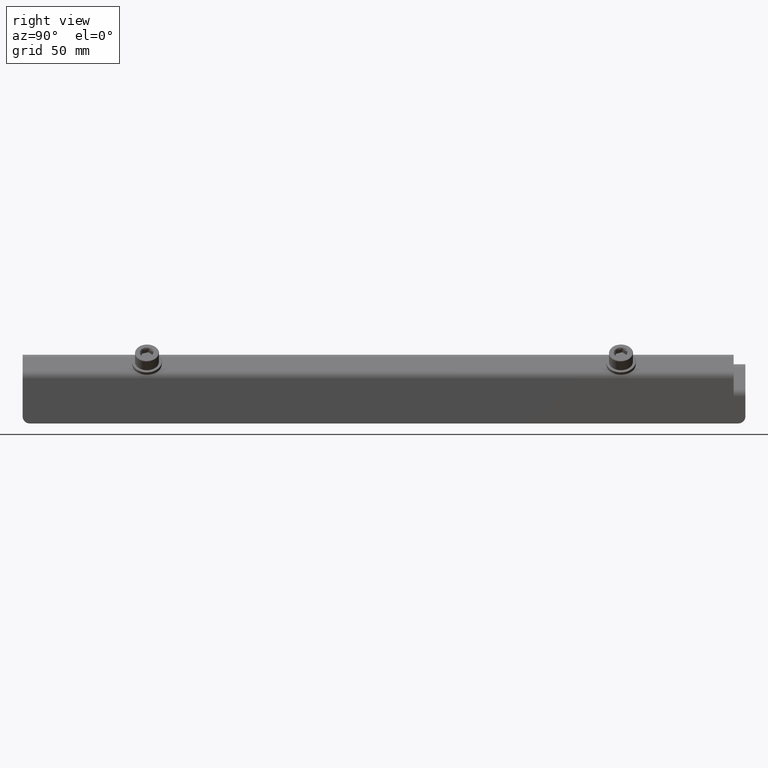
[diagram: clean part render]
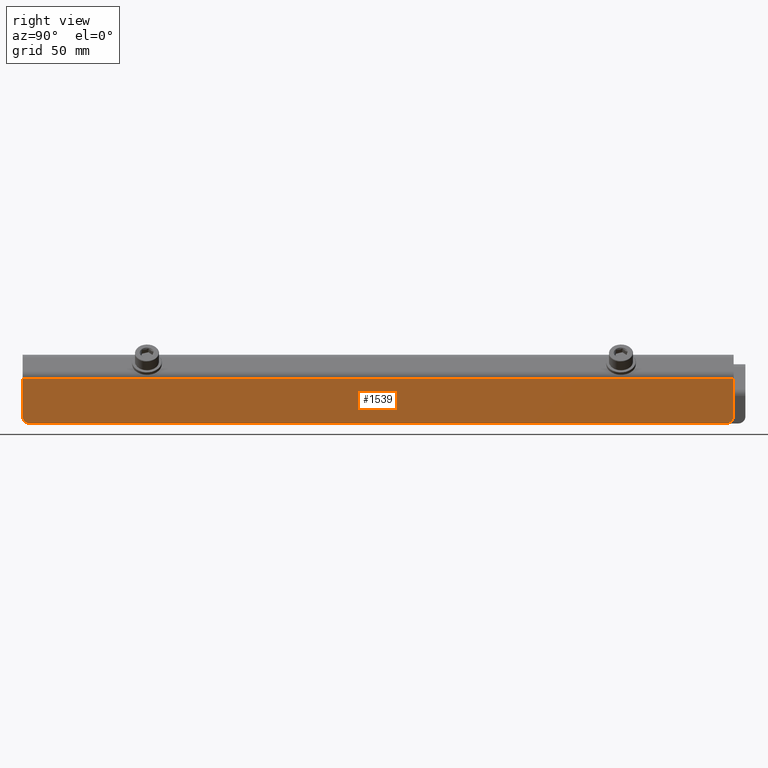
[diagram: same view with one face highlighted and labeled with its STEP entity id]
A machine part, right view. The second image highlights one B-rep face of the part: STEP entity #1539.
In plain terms, the highlighted planar face has unit normal (-1, 0, 0).
Its self-contained STEP definition (entity closure, byte-faithful):
#47 = DIRECTION ( 'NONE',  ( -1.000000000000000000, 1.962615573354721855E-16, 3.330669073875468832E-15 ) ) ;
#85 = LINE ( 'NONE', #2729, #2404 ) ;
#157 = VERTEX_POINT ( 'NONE', #903 ) ;
#299 = VERTEX_POINT ( 'NONE', #3073 ) ;
#369 = DIRECTION ( 'NONE',  ( -3.330669073875468832E-15, -1.962615573354715446E-16, -1.000000000000000000 ) ) ;
#499 = EDGE_CURVE ( 'NONE', #3006, #3013, #2072, .T. ) ;
#802 = CIRCLE ( 'NONE', #3239, 3.000000000000002665 ) ;
#842 = CARTESIAN_POINT ( 'NONE',  ( 3.547574842914249516, 223.3044532268044975, 164.4564181049460956 ) ) ;
#851 = DIRECTION ( 'NONE',  ( -1.000000000000000000, 1.962615573354721855E-16, 3.330669073875468832E-15 ) ) ;
#903 = CARTESIAN_POINT ( 'NONE',  ( 3.547574842914127835, -73.69554677319547409, 145.3559130415578124 ) ) ;
#985 = EDGE_CURVE ( 'NONE', #4008, #157, #2858, .T. ) ;
#1123 = EDGE_CURVE ( 'NONE', #3013, #4008, #2698, .T. ) ;
#1355 = FACE_OUTER_BOUND ( 'NONE', #3023, .T. ) ;
#1445 = EDGE_CURVE ( 'NONE', #299, #1578, #85, .T. ) ;
#1505 = LINE ( 'NONE', #2467, #1996 ) ;
#1516 = DIRECTION ( 'NONE',  ( -1.962615573354715199E-16, -1.000000000000000000, 1.962615573354722102E-16 ) ) ;
#1539 = ADVANCED_FACE ( 'NONE', ( #1355 ), #2680, .F. ) ;
#1578 = VERTEX_POINT ( 'NONE', #2769 ) ;
#1784 = ORIENTED_EDGE ( 'NONE', *, *, #1445, .T. ) ;
#1785 = DIRECTION ( 'NONE',  ( 1.962615573354715199E-16, 1.000000000000000000, -1.962615573354722102E-16 ) ) ;
#1833 = ORIENTED_EDGE ( 'NONE', *, *, #2492, .F. ) ;
#1996 = VECTOR ( 'NONE', #1785, 1000.000000000000000 ) ;
#2072 = LINE ( 'NONE', #2387, #3043 ) ;
#2081 = DIRECTION ( 'NONE',  ( -3.330669073875468832E-15, -1.962615573354715446E-16, -1.000000000000000000 ) ) ;
#2169 = CARTESIAN_POINT ( 'NONE',  ( 3.547574842914126947, -76.59554677319549398, 145.3559130415578124 ) ) ;
#2387 = CARTESIAN_POINT ( 'NONE',  ( 3.547574842914258841, 223.3044532268045259, 167.2848452296923085 ) ) ;
#2404 = VECTOR ( 'NONE', #2081, 1000.000000000000000 ) ;
#2467 = CARTESIAN_POINT ( 'NONE',  ( 3.547574842914190452, -76.59554677319549398, 164.4564181049461524 ) ) ;
#2492 = EDGE_CURVE ( 'NONE', #157, #1578, #802, .T. ) ;
#2552 = CARTESIAN_POINT ( 'NONE',  ( 3.547574842914195781, 223.3044532268044975, 148.3559130415577556 ) ) ;
#2680 = PLANE ( 'NONE',  #3052 ) ;
#2698 = CIRCLE ( 'NONE', #3115, 3.000000000000002665 ) ;
#2729 = CARTESIAN_POINT ( 'NONE',  ( 3.547574842914209992, -76.69554677319548830, 170.3559130415578124 ) ) ;
#2769 = CARTESIAN_POINT ( 'NONE',  ( 3.547574842914136717, -76.69554677319548830, 148.3559130415578124 ) ) ;
#2858 = LINE ( 'NONE', #2169, #3460 ) ;
#2870 = CARTESIAN_POINT ( 'NONE',  ( 3.547574842914185567, 220.3044532268044975, 145.3559130415577556 ) ) ;
#3006 = VERTEX_POINT ( 'NONE', #842 ) ;
#3013 = VERTEX_POINT ( 'NONE', #2552 ) ;
#3023 = EDGE_LOOP ( 'NONE', ( #1833, #3123, #3832, #3505, #3581, #1784 ) ) ;
#3043 = VECTOR ( 'NONE', #369, 1000.000000000000000 ) ;
#3052 = AXIS2_PLACEMENT_3D ( 'NONE', #4025, #47, #4147 ) ;
#3073 = CARTESIAN_POINT ( 'NONE',  ( 3.547574842914190452, -76.69554677319548830, 164.4564181049461524 ) ) ;
#3115 = AXIS2_PLACEMENT_3D ( 'NONE', #3850, #851, #3518 ) ;
#3123 = ORIENTED_EDGE ( 'NONE', *, *, #985, .F. ) ;
#3239 = AXIS2_PLACEMENT_3D ( 'NONE', #3650, #3937, #3602 ) ;
#3460 = VECTOR ( 'NONE', #1516, 1000.000000000000000 ) ;
#3505 = ORIENTED_EDGE ( 'NONE', *, *, #499, .F. ) ;
#3518 = DIRECTION ( 'NONE',  ( -3.324886662288877240E-15, 0.000000000000000000, -1.000000000000000000 ) ) ;
#3581 = ORIENTED_EDGE ( 'NONE', *, *, #3810, .F. ) ;
#3602 = DIRECTION ( 'NONE',  ( 3.324886662288877240E-15, 0.000000000000000000, 1.000000000000000000 ) ) ;
#3650 = CARTESIAN_POINT ( 'NONE',  ( 3.547574842914137605, -73.69554677319547409, 148.3559130415578124 ) ) ;
#3810 = EDGE_CURVE ( 'NONE', #299, #3006, #1505, .T. ) ;
#3832 = ORIENTED_EDGE ( 'NONE', *, *, #1123, .F. ) ;
#3850 = CARTESIAN_POINT ( 'NONE',  ( 3.547574842914195337, 220.3044532268044975, 148.3559130415577556 ) ) ;
#3937 = DIRECTION ( 'NONE',  ( -1.000000000000000000, 1.962615573354721855E-16, 3.330669073875468832E-15 ) ) ;
#4008 = VERTEX_POINT ( 'NONE', #2870 ) ;
#4025 = CARTESIAN_POINT ( 'NONE',  ( 3.547574842914126947, -76.59554677319549398, 145.3559130415578124 ) ) ;
#4147 = DIRECTION ( 'NONE',  ( -3.330669073875468832E-15, -1.962615573354715446E-16, -1.000000000000000000 ) ) ;